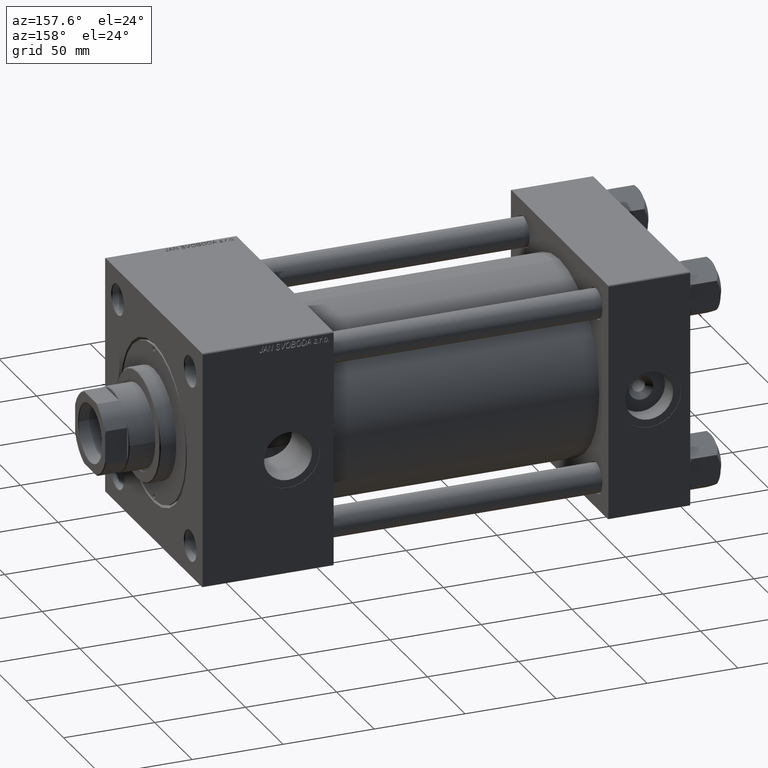
[diagram: clean part render]
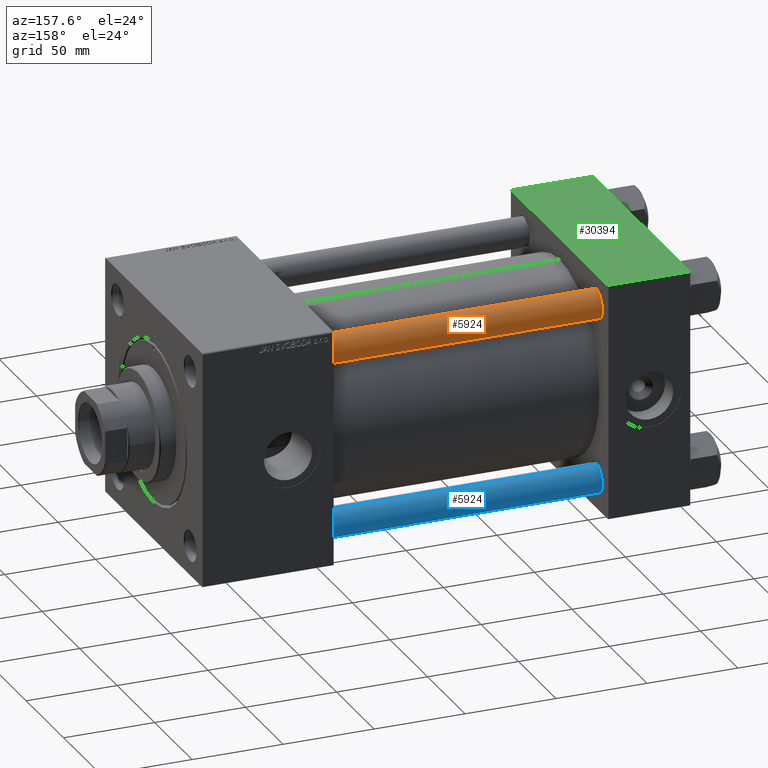
[diagram: same view with three faces highlighted in distinct colors, each labeled with its STEP entity id]
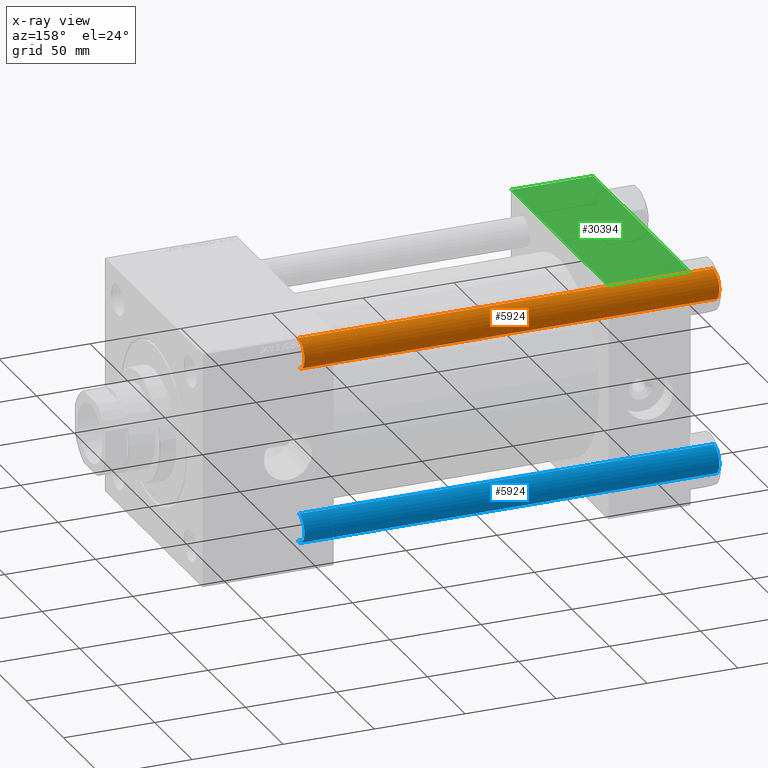
[diagram: x-ray of the same camera — body ghosted, the three highlighted faces saturated]
A machine part, auxiliary view with three faces highlighted in distinct colors.
The next image is the same camera in x-ray (body ghosted, the three faces saturated) — at least one of them is partly hidden behind the body in this view.
Their STEP definitions:

[orange] entity #5924 — the highlighted cylindrical surface (edge-blend (fillet) strip) has radius 8 mm, axis along (-1, 0, 0).
#838 = DIRECTION ( 'NONE',  ( -0.000000000000000000, -0.000000000000000000, -1.000000000000000000 ) ) ;
#1123 = EDGE_CURVE ( 'NONE', #4775, #7082, #15585, .T. ) ;
#4775 = VERTEX_POINT ( 'NONE', #9888 ) ;
#5235 = DIRECTION ( 'NONE',  ( 0.000000000000000000, 0.000000000000000000, -1.000000000000000000 ) ) ;
#5924 = ADVANCED_FACE ( 'NONE', ( #11878 ), #24200, .T. ) ;
#7082 = VERTEX_POINT ( 'NONE', #46272 ) ;
#9888 = CARTESIAN_POINT ( 'NONE',  ( -8.000000000000000000, 0.000000000000000000, 228.5000000000000853 ) ) ;
#11227 = DIRECTION ( 'NONE',  ( -0.000000000000000000, -0.000000000000000000, 1.000000000000000000 ) ) ;
#11436 = ORIENTED_EDGE ( 'NONE', *, *, #1123, .F. ) ;
#11878 = FACE_OUTER_BOUND ( 'NONE', #24871, .T. ) ;
#12378 = VERTEX_POINT ( 'NONE', #13169 ) ;
#13169 = CARTESIAN_POINT ( 'NONE',  ( 8.000000000000000000, 9.797174393178823685E-16, 0.5000000000001392220 ) ) ;
#14574 = DIRECTION ( 'NONE',  ( 1.000000000000000000, 0.000000000000000000, 0.000000000000000000 ) ) ;
#14942 = EDGE_CURVE ( 'NONE', #12378, #7082, #47112, .T. ) ;
#15230 = CARTESIAN_POINT ( 'NONE',  ( 8.000000000000000000, 9.797174393178823685E-16, 228.5000000000000853 ) ) ;
#15585 = LINE ( 'NONE', #15832, #45531 ) ;
#15832 = CARTESIAN_POINT ( 'NONE',  ( -8.000000000000000000, 0.000000000000000000, 229.0000000000000000 ) ) ;
#17049 = DIRECTION ( 'NONE',  ( 1.000000000000000000, 0.000000000000000000, 0.000000000000000000 ) ) ;
#18189 = ORIENTED_EDGE ( 'NONE', *, *, #44516, .T. ) ;
#19066 = VECTOR ( 'NONE', #40420, 1000.000000000000000 ) ;
#20251 = ORIENTED_EDGE ( 'NONE', *, *, #30626, .T. ) ;
#21666 = CARTESIAN_POINT ( 'NONE',  ( 0.000000000000000000, 0.000000000000000000, 228.5000000000000853 ) ) ;
#24200 = CYLINDRICAL_SURFACE ( 'NONE', #43235, 8.000000000000000000 ) ;
#24871 = EDGE_LOOP ( 'NONE', ( #20251, #18189, #40220, #11436 ) ) ;
#25283 = AXIS2_PLACEMENT_3D ( 'NONE', #21666, #5235, #17049 ) ;
#29118 = CARTESIAN_POINT ( 'NONE',  ( 8.000000000000000000, 9.797174393178823685E-16, 229.0000000000000000 ) ) ;
#29494 = VERTEX_POINT ( 'NONE', #15230 ) ;
#30626 = EDGE_CURVE ( 'NONE', #4775, #29494, #50705, .T. ) ;
#33481 = LINE ( 'NONE', #29118, #19066 ) ;
#35773 = DIRECTION ( 'NONE',  ( -1.000000000000000000, 0.000000000000000000, 0.000000000000000000 ) ) ;
#37976 = CARTESIAN_POINT ( 'NONE',  ( 0.000000000000000000, 0.000000000000000000, 0.5000000000001392220 ) ) ;
#40147 = CARTESIAN_POINT ( 'NONE',  ( 0.000000000000000000, 0.000000000000000000, 229.0000000000000000 ) ) ;
#40220 = ORIENTED_EDGE ( 'NONE', *, *, #14942, .T. ) ;
#40420 = DIRECTION ( 'NONE',  ( -0.000000000000000000, -0.000000000000000000, -1.000000000000000000 ) ) ;
#43235 = AXIS2_PLACEMENT_3D ( 'NONE', #40147, #838, #35773 ) ;
#44516 = EDGE_CURVE ( 'NONE', #29494, #12378, #33481, .T. ) ;
#45531 = VECTOR ( 'NONE', #46436, 1000.000000000000000 ) ;
#46272 = CARTESIAN_POINT ( 'NONE',  ( -8.000000000000000000, 0.000000000000000000, 0.5000000000001392220 ) ) ;
#46436 = DIRECTION ( 'NONE',  ( -0.000000000000000000, -0.000000000000000000, -1.000000000000000000 ) ) ;
#47112 = CIRCLE ( 'NONE', #49580, 8.000000000000000000 ) ;
#49580 = AXIS2_PLACEMENT_3D ( 'NONE', #37976, #11227, #14574 ) ;
#50705 = CIRCLE ( 'NONE', #25283, 8.000000000000000000 ) ;

[blue] entity #5924 — the highlighted cylindrical surface (edge-blend (fillet) strip) has radius 8 mm, axis along (1, -0, 0).
#838 = DIRECTION ( 'NONE',  ( -0.000000000000000000, -0.000000000000000000, -1.000000000000000000 ) ) ;
#1123 = EDGE_CURVE ( 'NONE', #4775, #7082, #15585, .T. ) ;
#4775 = VERTEX_POINT ( 'NONE', #9888 ) ;
#5235 = DIRECTION ( 'NONE',  ( 0.000000000000000000, 0.000000000000000000, -1.000000000000000000 ) ) ;
#5924 = ADVANCED_FACE ( 'NONE', ( #11878 ), #24200, .T. ) ;
#7082 = VERTEX_POINT ( 'NONE', #46272 ) ;
#9888 = CARTESIAN_POINT ( 'NONE',  ( -8.000000000000000000, 0.000000000000000000, 228.5000000000000853 ) ) ;
#11227 = DIRECTION ( 'NONE',  ( -0.000000000000000000, -0.000000000000000000, 1.000000000000000000 ) ) ;
#11436 = ORIENTED_EDGE ( 'NONE', *, *, #1123, .F. ) ;
#11878 = FACE_OUTER_BOUND ( 'NONE', #24871, .T. ) ;
#12378 = VERTEX_POINT ( 'NONE', #13169 ) ;
#13169 = CARTESIAN_POINT ( 'NONE',  ( 8.000000000000000000, 9.797174393178823685E-16, 0.5000000000001392220 ) ) ;
#14574 = DIRECTION ( 'NONE',  ( 1.000000000000000000, 0.000000000000000000, 0.000000000000000000 ) ) ;
#14942 = EDGE_CURVE ( 'NONE', #12378, #7082, #47112, .T. ) ;
#15230 = CARTESIAN_POINT ( 'NONE',  ( 8.000000000000000000, 9.797174393178823685E-16, 228.5000000000000853 ) ) ;
#15585 = LINE ( 'NONE', #15832, #45531 ) ;
#15832 = CARTESIAN_POINT ( 'NONE',  ( -8.000000000000000000, 0.000000000000000000, 229.0000000000000000 ) ) ;
#17049 = DIRECTION ( 'NONE',  ( 1.000000000000000000, 0.000000000000000000, 0.000000000000000000 ) ) ;
#18189 = ORIENTED_EDGE ( 'NONE', *, *, #44516, .T. ) ;
#19066 = VECTOR ( 'NONE', #40420, 1000.000000000000000 ) ;
#20251 = ORIENTED_EDGE ( 'NONE', *, *, #30626, .T. ) ;
#21666 = CARTESIAN_POINT ( 'NONE',  ( 0.000000000000000000, 0.000000000000000000, 228.5000000000000853 ) ) ;
#24200 = CYLINDRICAL_SURFACE ( 'NONE', #43235, 8.000000000000000000 ) ;
#24871 = EDGE_LOOP ( 'NONE', ( #20251, #18189, #40220, #11436 ) ) ;
#25283 = AXIS2_PLACEMENT_3D ( 'NONE', #21666, #5235, #17049 ) ;
#29118 = CARTESIAN_POINT ( 'NONE',  ( 8.000000000000000000, 9.797174393178823685E-16, 229.0000000000000000 ) ) ;
#29494 = VERTEX_POINT ( 'NONE', #15230 ) ;
#30626 = EDGE_CURVE ( 'NONE', #4775, #29494, #50705, .T. ) ;
#33481 = LINE ( 'NONE', #29118, #19066 ) ;
#35773 = DIRECTION ( 'NONE',  ( -1.000000000000000000, 0.000000000000000000, 0.000000000000000000 ) ) ;
#37976 = CARTESIAN_POINT ( 'NONE',  ( 0.000000000000000000, 0.000000000000000000, 0.5000000000001392220 ) ) ;
#40147 = CARTESIAN_POINT ( 'NONE',  ( 0.000000000000000000, 0.000000000000000000, 229.0000000000000000 ) ) ;
#40220 = ORIENTED_EDGE ( 'NONE', *, *, #14942, .T. ) ;
#40420 = DIRECTION ( 'NONE',  ( -0.000000000000000000, -0.000000000000000000, -1.000000000000000000 ) ) ;
#43235 = AXIS2_PLACEMENT_3D ( 'NONE', #40147, #838, #35773 ) ;
#44516 = EDGE_CURVE ( 'NONE', #29494, #12378, #33481, .T. ) ;
#45531 = VECTOR ( 'NONE', #46436, 1000.000000000000000 ) ;
#46272 = CARTESIAN_POINT ( 'NONE',  ( -8.000000000000000000, 0.000000000000000000, 0.5000000000001392220 ) ) ;
#46436 = DIRECTION ( 'NONE',  ( -0.000000000000000000, -0.000000000000000000, -1.000000000000000000 ) ) ;
#47112 = CIRCLE ( 'NONE', #49580, 8.000000000000000000 ) ;
#49580 = AXIS2_PLACEMENT_3D ( 'NONE', #37976, #11227, #14574 ) ;
#50705 = CIRCLE ( 'NONE', #25283, 8.000000000000000000 ) ;

[green] entity #30394 — the highlighted planar face has unit normal (0, 0, -1).
#1110 = CARTESIAN_POINT ( 'NONE',  ( 45.00000000000000000, -64.49999999999997158, 65.00000000000000000 ) ) ;
#2115 = VECTOR ( 'NONE', #2941, 1000.000000000000000 ) ;
#2941 = DIRECTION ( 'NONE',  ( 0.000000000000000000, -1.000000000000000000, -1.067522139062650425E-16 ) ) ;
#7058 = CARTESIAN_POINT ( 'NONE',  ( 45.00000000000000000, 65.00000000000000000, 65.00000000000001421 ) ) ;
#8777 = LINE ( 'NONE', #27795, #43652 ) ;
#10909 = DIRECTION ( 'NONE',  ( 0.000000000000000000, 1.067522139062650548E-16, -1.000000000000000000 ) ) ;
#13469 = VECTOR ( 'NONE', #30293, 1000.000000000000000 ) ;
#14599 = CARTESIAN_POINT ( 'NONE',  ( 0.000000000000000000, 64.49999999999997158, 65.00000000000001421 ) ) ;
#16735 = DIRECTION ( 'NONE',  ( 0.000000000000000000, -1.000000000000000000, -1.067522139062650425E-16 ) ) ;
#16776 = DIRECTION ( 'NONE',  ( 1.000000000000000000, 0.000000000000000000, 0.000000000000000000 ) ) ;
#17493 = ORIENTED_EDGE ( 'NONE', *, *, #41075, .F. ) ;
#19935 = VERTEX_POINT ( 'NONE', #27020 ) ;
#20153 = EDGE_LOOP ( 'NONE', ( #42740, #25486, #17493, #28796 ) ) ;
#22666 = EDGE_CURVE ( 'NONE', #49511, #25987, #30443, .T. ) ;
#25486 = ORIENTED_EDGE ( 'NONE', *, *, #36396, .T. ) ;
#25987 = VERTEX_POINT ( 'NONE', #29103 ) ;
#27020 = CARTESIAN_POINT ( 'NONE',  ( 45.00000000000000000, -64.49999999999997158, 65.00000000000000000 ) ) ;
#27107 = VECTOR ( 'NONE', #16776, 1000.000000000000000 ) ;
#27795 = CARTESIAN_POINT ( 'NONE',  ( 45.00000000000000000, 65.00000000000000000, 65.00000000000001421 ) ) ;
#28796 = ORIENTED_EDGE ( 'NONE', *, *, #47610, .T. ) ;
#29103 = CARTESIAN_POINT ( 'NONE',  ( 0.000000000000000000, -64.49999999999997158, 65.00000000000000000 ) ) ;
#30293 = DIRECTION ( 'NONE',  ( -1.000000000000000000, 0.000000000000000000, 0.000000000000000000 ) ) ;
#30394 = ADVANCED_FACE ( 'NONE', ( #30448 ), #46113, .F. ) ;
#30443 = LINE ( 'NONE', #49719, #2115 ) ;
#30448 = FACE_OUTER_BOUND ( 'NONE', #20153, .T. ) ;
#31074 = CARTESIAN_POINT ( 'NONE',  ( 45.00000000000000000, 64.49999999999997158, 65.00000000000001421 ) ) ;
#31493 = CARTESIAN_POINT ( 'NONE',  ( 0.000000000000000000, 64.49999999999997158, 65.00000000000001421 ) ) ;
#36396 = EDGE_CURVE ( 'NONE', #25987, #19935, #47613, .T. ) ;
#36873 = VERTEX_POINT ( 'NONE', #31074 ) ;
#38423 = DIRECTION ( 'NONE',  ( 0.000000000000000000, 1.000000000000000000, 1.067522139062650548E-16 ) ) ;
#41075 = EDGE_CURVE ( 'NONE', #36873, #19935, #8777, .T. ) ;
#42740 = ORIENTED_EDGE ( 'NONE', *, *, #22666, .T. ) ;
#43652 = VECTOR ( 'NONE', #16735, 1000.000000000000000 ) ;
#46113 = PLANE ( 'NONE',  #47402 ) ;
#47402 = AXIS2_PLACEMENT_3D ( 'NONE', #7058, #10909, #38423 ) ;
#47610 = EDGE_CURVE ( 'NONE', #36873, #49511, #49813, .T. ) ;
#47613 = LINE ( 'NONE', #1110, #27107 ) ;
#49511 = VERTEX_POINT ( 'NONE', #31493 ) ;
#49719 = CARTESIAN_POINT ( 'NONE',  ( 0.000000000000000000, 65.00000000000000000, 65.00000000000001421 ) ) ;
#49813 = LINE ( 'NONE', #14599, #13469 ) ;